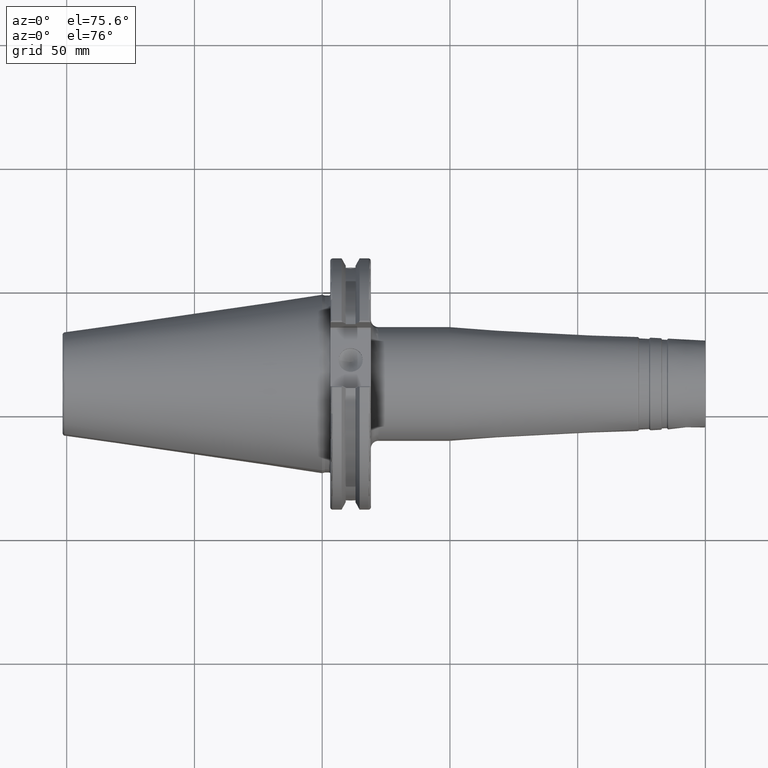
[diagram: clean part render]
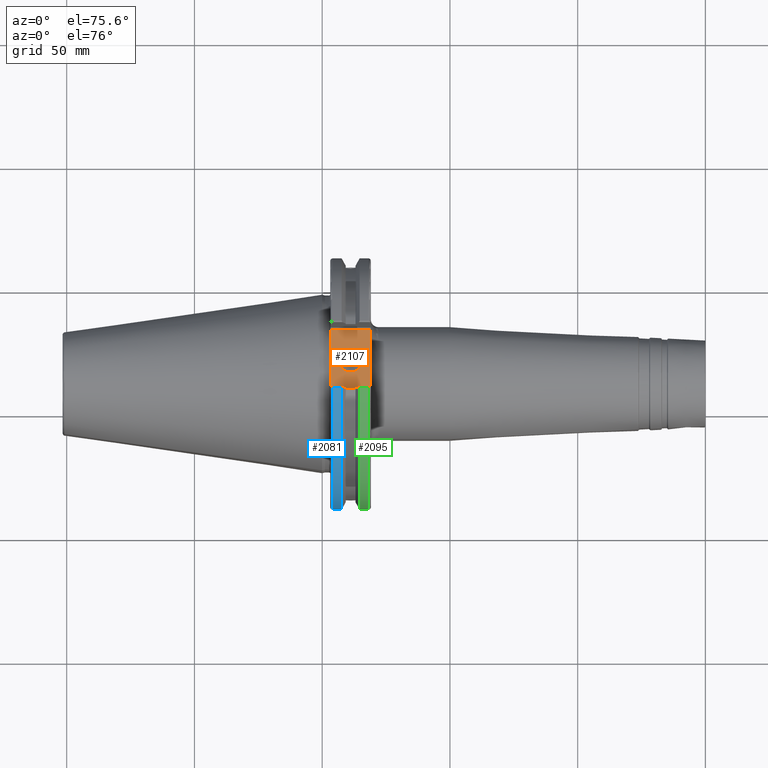
[diagram: same view with three faces highlighted in distinct colors, each labeled with its STEP entity id]
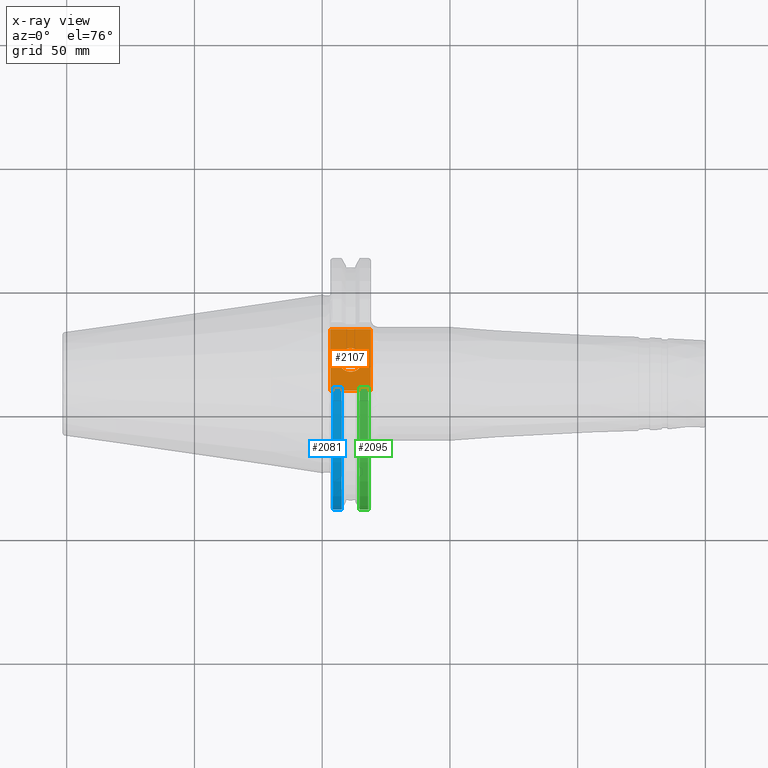
[diagram: x-ray of the same camera — body ghosted, the three highlighted faces saturated]
A machine part, auxiliary view with three faces highlighted in distinct colors.
The next image is the same camera in x-ray (body ghosted, the three faces saturated) — at least one of them is partly hidden behind the body in this view.
Their STEP definitions:

[orange] entity #2107 — the highlighted planar face has unit normal (0, 0, 1).
#66=PLANE('',#2395);
#127=FACE_BOUND('',#385,.T.);
#262=FACE_OUTER_BOUND('',#384,.T.);
#384=EDGE_LOOP('',(#1937,#1938,#1939,#1940));
#385=EDGE_LOOP('',(#1941,#1942));
#402=LINE('',#3237,#504);
#452=LINE('',#3889,#554);
#480=LINE('',#4128,#582);
#482=LINE('',#4131,#584);
#504=VECTOR('',#2466,10.);
#554=VECTOR('',#2866,10.);
#582=VECTOR('',#2970,10.);
#584=VECTOR('',#2974,10.);
#756=CIRCLE('',#2386,4.7625);
#757=CIRCLE('',#2387,4.7625);
#791=VERTEX_POINT('',#3234);
#792=VERTEX_POINT('',#3236);
#944=VERTEX_POINT('',#3886);
#945=VERTEX_POINT('',#3888);
#997=VERTEX_POINT('',#4169);
#998=VERTEX_POINT('',#4170);
#1032=EDGE_CURVE('',#791,#792,#402,.T.);
#1228=EDGE_CURVE('',#944,#945,#452,.T.);
#1296=EDGE_CURVE('',#792,#944,#480,.T.);
#1298=EDGE_CURVE('',#945,#791,#482,.T.);
#1314=EDGE_CURVE('',#997,#998,#756,.T.);
#1315=EDGE_CURVE('',#998,#997,#757,.T.);
#1937=ORIENTED_EDGE('',*,*,#1296,.F.);
#1938=ORIENTED_EDGE('',*,*,#1032,.F.);
#1939=ORIENTED_EDGE('',*,*,#1298,.F.);
#1940=ORIENTED_EDGE('',*,*,#1228,.F.);
#1941=ORIENTED_EDGE('',*,*,#1314,.T.);
#1942=ORIENTED_EDGE('',*,*,#1315,.T.);
#2107=ADVANCED_FACE('',(#262,#127),#66,.T.);
#2386=AXIS2_PLACEMENT_3D('',#4171,#3011,#3012);
#2387=AXIS2_PLACEMENT_3D('',#4172,#3013,#3014);
#2395=AXIS2_PLACEMENT_3D('',#4181,#3030,#3031);
#2466=DIRECTION('',(0.,-1.,0.));
#2866=DIRECTION('',(0.,1.,0.));
#2970=DIRECTION('',(-1.,1.31581988103722E-16,0.));
#2974=DIRECTION('',(1.,0.,0.));
#3011=DIRECTION('center_axis',(0.,0.,-1.));
#3012=DIRECTION('ref_axis',(1.,0.,0.));
#3013=DIRECTION('center_axis',(0.,0.,-1.));
#3014=DIRECTION('ref_axis',(1.,0.,0.));
#3030=DIRECTION('center_axis',(0.,0.,1.));
#3031=DIRECTION('ref_axis',(1.,0.,0.));
#3234=CARTESIAN_POINT('',(19.05,12.45,37.719));
#3236=CARTESIAN_POINT('',(19.05,-12.45,37.719));
#3237=CARTESIAN_POINT('',(19.05,0.,37.719));
#3886=CARTESIAN_POINT('',(3.175,-12.45,37.719));
#3888=CARTESIAN_POINT('',(3.175,12.45,37.719));
#3889=CARTESIAN_POINT('',(3.175,24.60625,37.719));
#4128=CARTESIAN_POINT('',(10.63125,-12.45,37.719));
#4131=CARTESIAN_POINT('',(19.06875,12.45,37.719));
#4169=CARTESIAN_POINT('',(15.8966,0.,37.719));
#4170=CARTESIAN_POINT('',(6.3716,-5.83238038093927E-16,37.719));
#4171=CARTESIAN_POINT('Origin',(11.1341,0.,37.719));
#4172=CARTESIAN_POINT('Origin',(11.1341,0.,37.719));
#4181=CARTESIAN_POINT('Origin',(18.0875,0.,37.719));

[blue] entity #2081 — the highlighted cylindrical surface (partial cylindrical patch) has radius 49.2125 mm, axis along (1, 0, 0).
#236=FACE_OUTER_BOUND('',#357,.T.);
#357=EDGE_LOOP('',(#1810,#1811,#1812,#1813));
#474=LINE('',#4058,#576);
#475=LINE('',#4064,#577);
#576=VECTOR('',#2918,10.);
#577=VECTOR('',#2921,10.);
#740=CIRCLE('',#2347,49.2125);
#741=CIRCLE('',#2350,49.2125);
#973=VERTEX_POINT('',#4037);
#974=VERTEX_POINT('',#4046);
#975=VERTEX_POINT('',#4057);
#976=VERTEX_POINT('',#4063);
#1271=EDGE_CURVE('',#973,#974,#740,.T.);
#1273=EDGE_CURVE('',#974,#975,#474,.T.);
#1275=EDGE_CURVE('',#976,#973,#475,.T.);
#1276=EDGE_CURVE('',#975,#976,#741,.T.);
#1810=ORIENTED_EDGE('',*,*,#1271,.F.);
#1811=ORIENTED_EDGE('',*,*,#1275,.F.);
#1812=ORIENTED_EDGE('',*,*,#1276,.F.);
#1813=ORIENTED_EDGE('',*,*,#1273,.F.);
#2004=CYLINDRICAL_SURFACE('',#2349,49.2125);
#2081=ADVANCED_FACE('',(#236),#2004,.T.);
#2347=AXIS2_PLACEMENT_3D('',#4047,#2914,#2915);
#2349=AXIS2_PLACEMENT_3D('',#4062,#2919,#2920);
#2350=AXIS2_PLACEMENT_3D('',#4065,#2922,#2923);
#2914=DIRECTION('center_axis',(-1.,0.,0.));
#2915=DIRECTION('ref_axis',(0.,-1.,1.60812264967664E-16));
#2918=DIRECTION('',(1.,0.,0.));
#2919=DIRECTION('center_axis',(1.,0.,0.));
#2920=DIRECTION('ref_axis',(0.,-1.,1.22464679914735E-16));
#2921=DIRECTION('',(-1.,0.,0.));
#2922=DIRECTION('center_axis',(1.,0.,0.));
#2923=DIRECTION('ref_axis',(0.,0.,-1.));
#4037=CARTESIAN_POINT('',(4.175,-13.4317035994433,-47.3440544806494));
#4046=CARTESIAN_POINT('',(4.175,-13.4317035994433,47.3440544806494));
#4047=CARTESIAN_POINT('Origin',(4.175,0.,0.));
#4057=CARTESIAN_POINT('',(7.60799096595127,-13.4317035994433,47.3440544806494));
#4058=CARTESIAN_POINT('',(5.39149548297563,-13.4317035994433,47.3440544806494));
#4062=CARTESIAN_POINT('Origin',(5.39149548297563,0.,0.));
#4063=CARTESIAN_POINT('',(7.60799096595127,-13.4317035994433,-47.3440544806494));
#4064=CARTESIAN_POINT('',(5.39149548297563,-13.4317035994433,-47.3440544806494));
#4065=CARTESIAN_POINT('Origin',(7.60799096595127,0.,0.));

[green] entity #2095 — the highlighted cylindrical surface (partial cylindrical patch) has radius 49.2125 mm, axis along (1, 0, 0).
#250=FACE_OUTER_BOUND('',#372,.T.);
#372=EDGE_LOOP('',(#1882,#1883,#1884,#1885));
#488=LINE('',#4146,#590);
#489=LINE('',#4148,#591);
#590=VECTOR('',#2984,10.);
#591=VECTOR('',#2987,10.);
#701=CIRCLE('',#2278,49.2125);
#739=CIRCLE('',#2343,49.2125);
#889=VERTEX_POINT('',#3586);
#890=VERTEX_POINT('',#3590);
#964=VERTEX_POINT('',#3981);
#965=VERTEX_POINT('',#3990);
#1156=EDGE_CURVE('',#890,#889,#701,.T.);
#1255=EDGE_CURVE('',#964,#965,#739,.T.);
#1305=EDGE_CURVE('',#965,#889,#488,.T.);
#1306=EDGE_CURVE('',#890,#964,#489,.T.);
#1882=ORIENTED_EDGE('',*,*,#1255,.F.);
#1883=ORIENTED_EDGE('',*,*,#1306,.F.);
#1884=ORIENTED_EDGE('',*,*,#1156,.T.);
#1885=ORIENTED_EDGE('',*,*,#1305,.F.);
#2005=CYLINDRICAL_SURFACE('',#2375,49.2125);
#2095=ADVANCED_FACE('',(#250),#2005,.T.);
#2278=AXIS2_PLACEMENT_3D('',#3591,#2732,#2733);
#2343=AXIS2_PLACEMENT_3D('',#3991,#2897,#2898);
#2375=AXIS2_PLACEMENT_3D('',#4147,#2985,#2986);
#2732=DIRECTION('center_axis',(1.,0.,0.));
#2733=DIRECTION('ref_axis',(0.,0.,-1.));
#2897=DIRECTION('center_axis',(1.,0.,0.));
#2898=DIRECTION('ref_axis',(0.,-1.,1.60812264967664E-16));
#2984=DIRECTION('',(-1.,0.,0.));
#2985=DIRECTION('center_axis',(1.,0.,0.));
#2986=DIRECTION('ref_axis',(0.,-1.,1.22464679914735E-16));
#2987=DIRECTION('',(1.,0.,0.));
#3586=CARTESIAN_POINT('',(14.6602090340487,-13.4317035994433,-47.3440544806494));
#3590=CARTESIAN_POINT('',(14.6602090340487,-13.4317035994433,47.3440544806494));
#3591=CARTESIAN_POINT('Origin',(14.6602090340487,0.,0.));
#3981=CARTESIAN_POINT('',(18.05,-13.4317035994433,47.3440544806494));
#3990=CARTESIAN_POINT('',(18.05,-13.4317035994433,-47.3440544806494));
#3991=CARTESIAN_POINT('Origin',(18.05,0.,0.));
#4146=CARTESIAN_POINT('',(16.8551045170244,-13.4317035994433,-47.3440544806494));
#4147=CARTESIAN_POINT('Origin',(16.8551045170244,0.,0.));
#4148=CARTESIAN_POINT('',(16.8551045170244,-13.4317035994433,47.3440544806494));